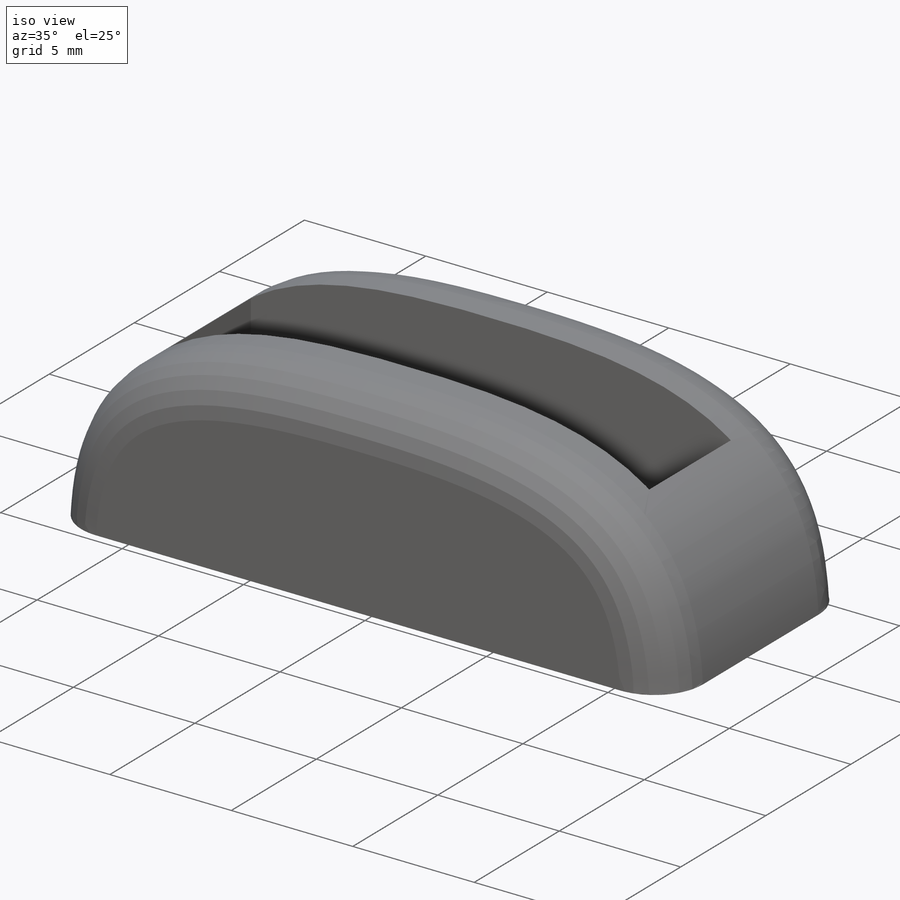
[diagram: iso view]
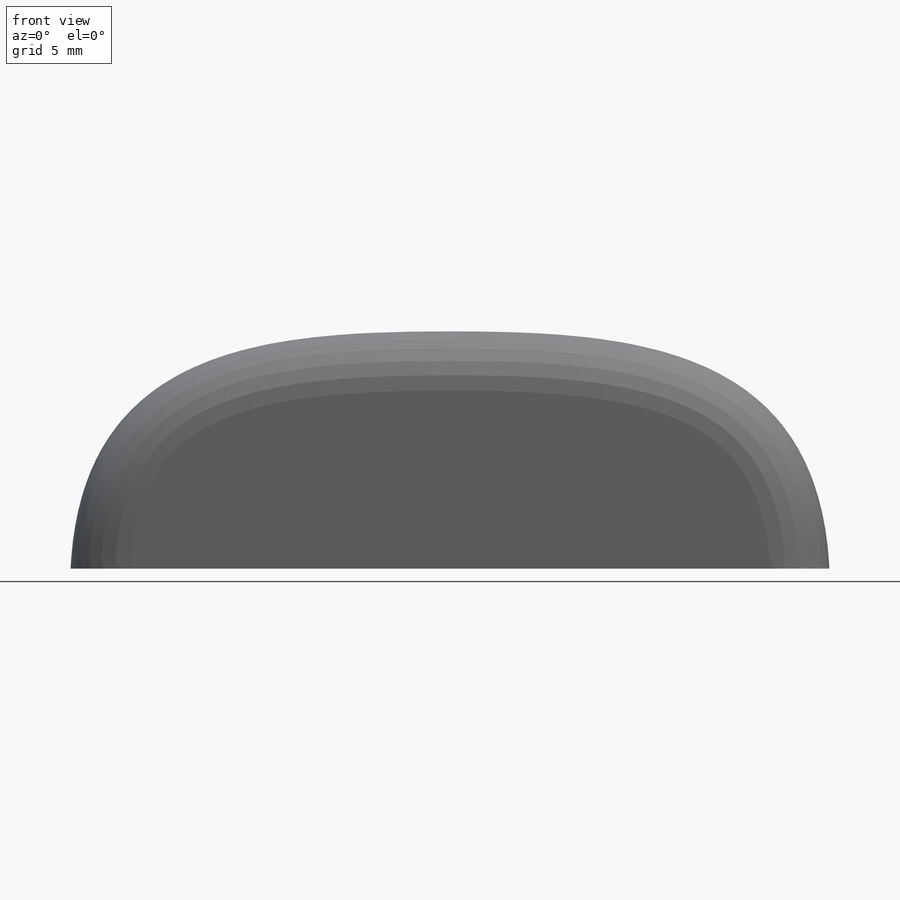
[diagram: front view]
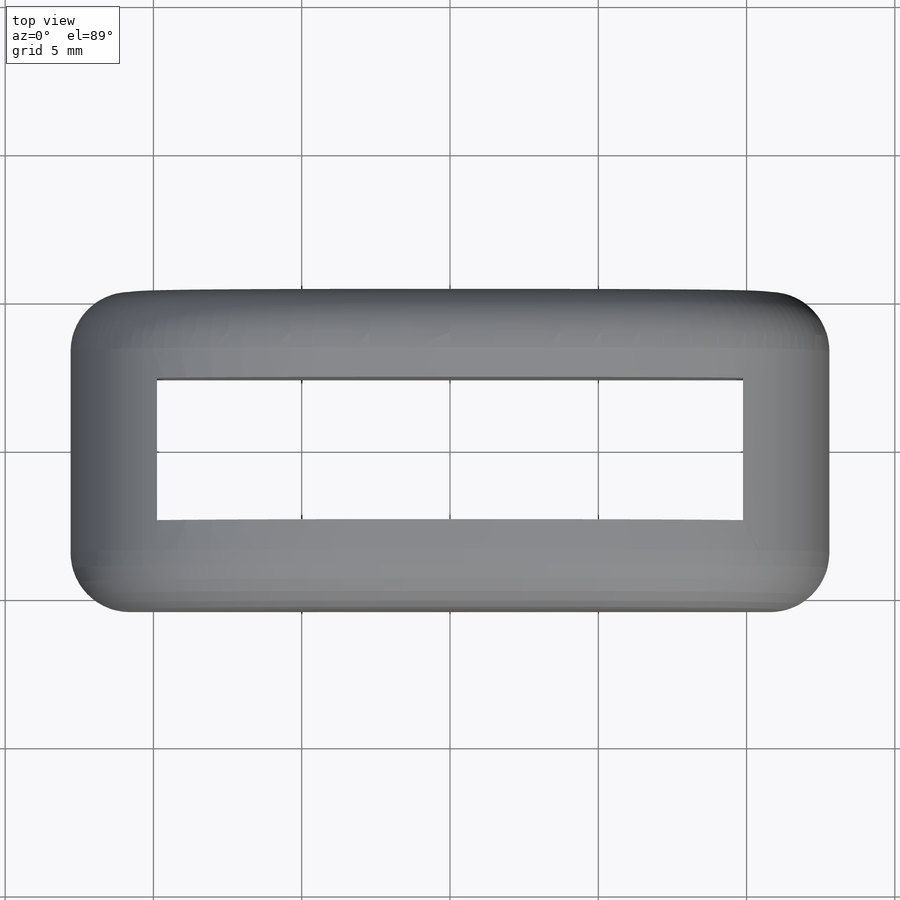
[diagram: top view]
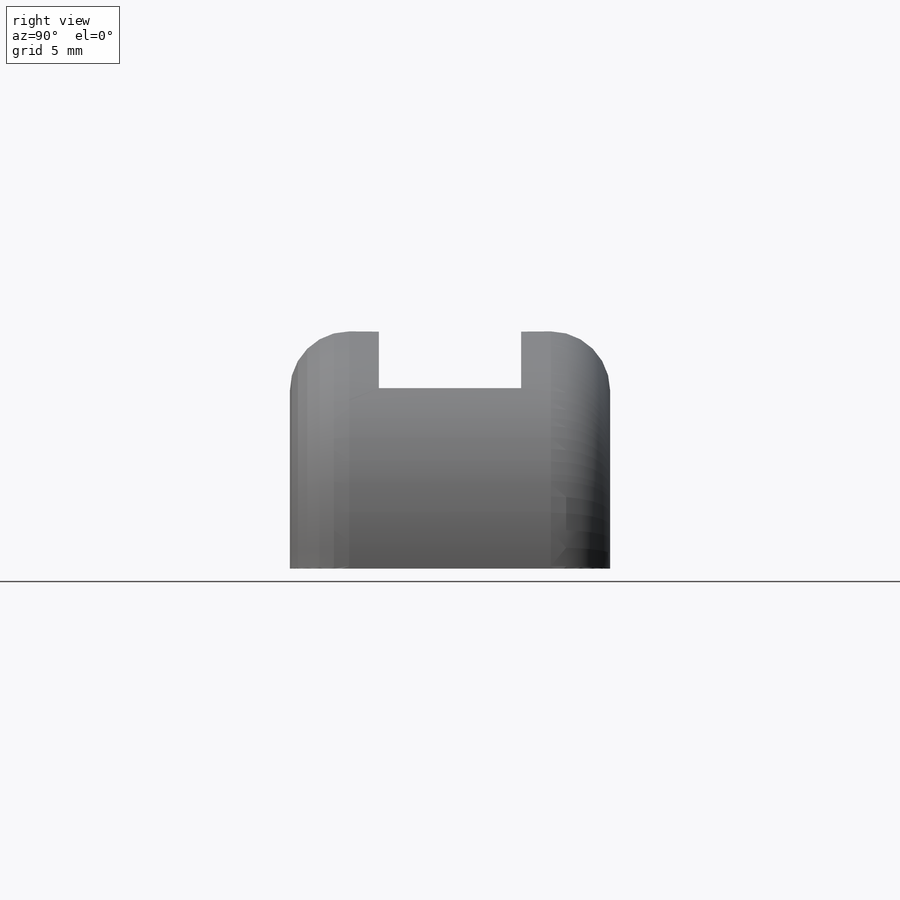
[diagram: right view]
SOLIDWORKS PART (.sldprt)
format: sldprt  version: not decoded by parser v0  size: 266,240 bytes
history: native  units: mm
features: sketch x4, fillet x3, cut_extrude x2, material x1, extrude x1 (+11 scaffold rows collapsed)
feature tree (22):
  scaffold x11  (default folders/planes/origin — collapsed)
  material  "Material <not specified>"
  sketch  "Sketch1"  dims[D1=4.8mm D2=19.76mm D3=10.8mm D4=25.59mm]
  extrude  "Boss-Extrude1"  Depth=8mm
  sketch  "Sketch2"  dims[D1=6.0mm D2=14.0mm]
  sketch  "Sketch4"  dims[D1=6.0mm D2=20.0mm]
  sketch  "Sketch3"  dims[D1=24.0mm D2=8.8mm]
  cut_extrude  "Cut-Extrude3"  [1 undecoded]
  fillet  "Fillet2"  Radius=2mm
  fillet  "Fillet3"  Radius=2mm
  cut_extrude  "Cut-Extrude2"  Depth=1mm
  fillet  "Fillet4"  Radius=2mm
decode coverage: 9 of 10 modeling features carry decoded parameters
note: 1 parameter value undecoded
note: suppression state not decoded; provenance and decode notes live in map.json
